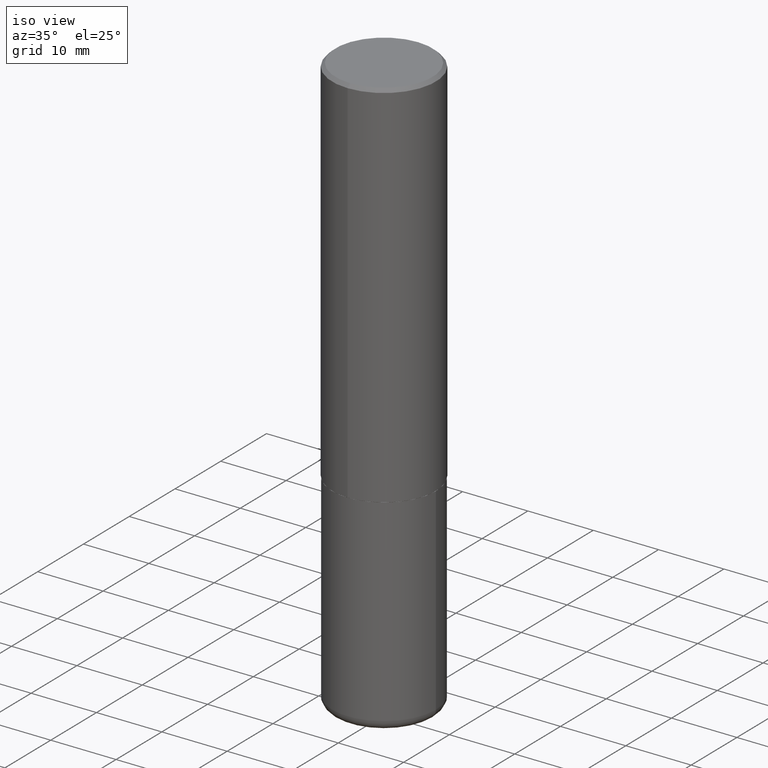
[diagram: clean part render]
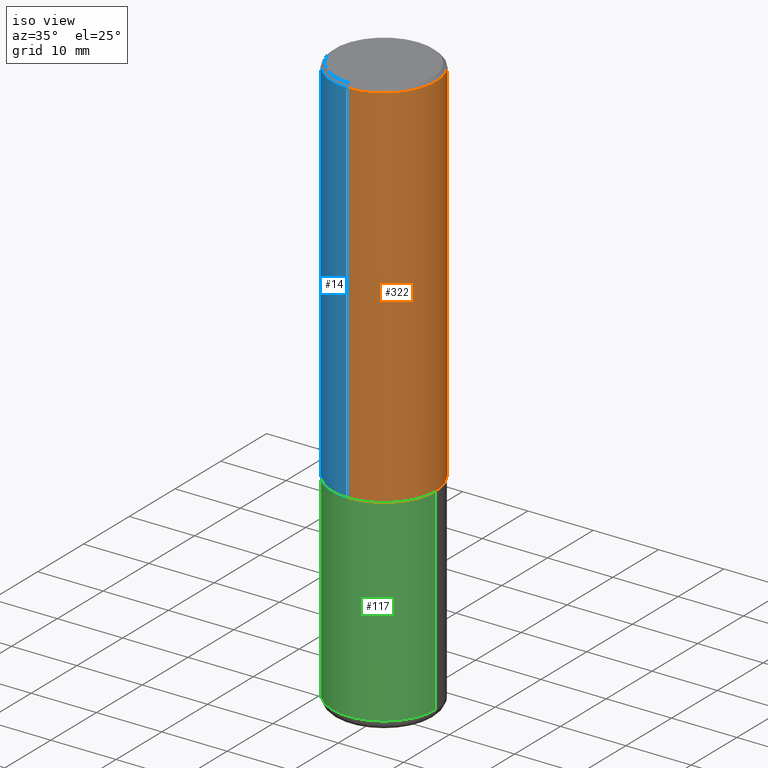
[diagram: same view with three faces highlighted in distinct colors, each labeled with its STEP entity id]
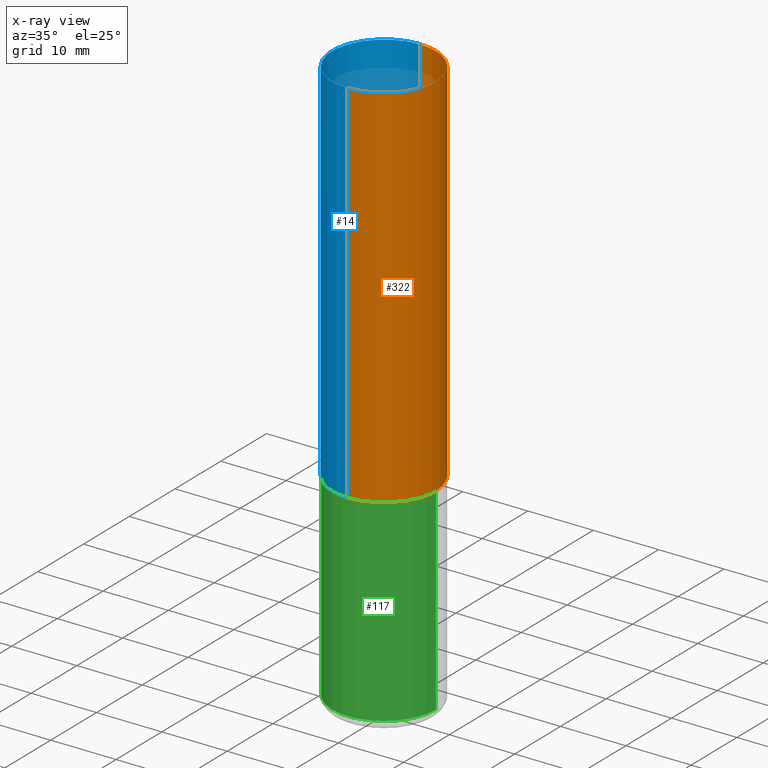
[diagram: x-ray of the same camera — body ghosted, the three highlighted faces saturated]
A machine part, iso view with three faces highlighted in distinct colors.
The next image is the same camera in x-ray (body ghosted, the three faces saturated) — at least one of them is partly hidden behind the body in this view.
Their STEP definitions:

[orange] entity #322 — the highlighted cylindrical surface (partial cylindrical patch) has radius 7.9375 mm, axis along (-0, 0, 1).
#9 = CYLINDRICAL_SURFACE ( 'NONE', #76, 0.3125000000000000555 ) ;
#13 = VECTOR ( 'NONE', #289, 39.37007874015748143 ) ;
#42 = CARTESIAN_POINT ( 'NONE',  ( 0.000000000000000000, 0.000000000000000000, 0.000000000000000000 ) ) ;
#49 = DIRECTION ( 'NONE',  ( -2.444155435168616212E-29, 3.493362160891238126E-15, 1.000000000000000000 ) ) ;
#55 = ORIENTED_EDGE ( 'NONE', *, *, #370, .T. ) ;
#58 = EDGE_CURVE ( 'NONE', #70, #309, #341, .T. ) ;
#64 = DIRECTION ( 'NONE',  ( -6.982962677686265922E-15, -1.000000000000000000, 3.496765431890253764E-15 ) ) ;
#70 = VERTEX_POINT ( 'NONE', #365 ) ;
#76 = AXIS2_PLACEMENT_3D ( 'NONE', #42, #397, #120 ) ;
#82 = ORIENTED_EDGE ( 'NONE', *, *, #205, .F. ) ;
#89 = DIRECTION ( 'NONE',  ( -6.982962677686265133E-15, -1.000000000000000000, 3.496765431890258103E-15 ) ) ;
#109 = VERTEX_POINT ( 'NONE', #317 ) ;
#116 = CIRCLE ( 'NONE', #355, 0.3124999999999998890 ) ;
#120 = DIRECTION ( 'NONE',  ( -6.982962677686266711E-15, -1.000000000000000000, 3.493362160891238520E-15 ) ) ;
#184 = LINE ( 'NONE', #340, #13 ) ;
#186 = VECTOR ( 'NONE', #49, 39.37007874015748143 ) ;
#200 = EDGE_LOOP ( 'NONE', ( #55, #211, #82, #392 ) ) ;
#205 = EDGE_CURVE ( 'NONE', #386, #309, #116, .T. ) ;
#211 = ORIENTED_EDGE ( 'NONE', *, *, #58, .T. ) ;
#217 = CARTESIAN_POINT ( 'NONE',  ( 2.182175836776957558E-15, 0.3124999999999998335, -0.02000000000000116268 ) ) ;
#219 = DIRECTION ( 'NONE',  ( -2.444155435168616212E-29, 3.493362160891238520E-15, 1.000000000000000000 ) ) ;
#241 = CARTESIAN_POINT ( 'NONE',  ( 2.220446049250313081E-15, 0.3125000000000000555, -1.091675675278512284E-15 ) ) ;
#261 = CIRCLE ( 'NONE', #374, 0.3125000000000002776 ) ;
#289 = DIRECTION ( 'NONE',  ( -2.444155435168616212E-29, 3.493362160891238126E-15, 1.000000000000000000 ) ) ;
#291 = CARTESIAN_POINT ( 'NONE',  ( 4.888310870337248995E-31, -6.986724321782500903E-17, -0.02000000000000006981 ) ) ;
#309 = VERTEX_POINT ( 'NONE', #217 ) ;
#317 = CARTESIAN_POINT ( 'NONE',  ( -2.182175836776905099E-15, -0.3125000000000081601, -2.248999999999998778 ) ) ;
#322 = ADVANCED_FACE ( 'NONE', ( #366 ), #9, .T. ) ;
#340 = CARTESIAN_POINT ( 'NONE',  ( -2.182175836776958741E-15, -0.3125000000000000555, 1.091675675278512284E-15 ) ) ;
#341 = LINE ( 'NONE', #241, #186 ) ;
#349 = EDGE_CURVE ( 'NONE', #109, #386, #184, .T. ) ;
#355 = AXIS2_PLACEMENT_3D ( 'NONE', #291, #376, #89 ) ;
#365 = CARTESIAN_POINT ( 'NONE',  ( 2.220446049250341480E-15, 0.3124999999999924505, -2.249000000000000998 ) ) ;
#366 = FACE_OUTER_BOUND ( 'NONE', #200, .T. ) ;
#370 = EDGE_CURVE ( 'NONE', #109, #70, #261, .T. ) ;
#372 = CARTESIAN_POINT ( 'NONE',  ( 5.496905573694216767E-29, -7.856571499844395127E-15, -2.248999999999999666 ) ) ;
#374 = AXIS2_PLACEMENT_3D ( 'NONE', #372, #219, #64 ) ;
#376 = DIRECTION ( 'NONE',  ( -2.444155435168616212E-29, 3.493362160891238520E-15, 1.000000000000000000 ) ) ;
#386 = VERTEX_POINT ( 'NONE', #417 ) ;
#392 = ORIENTED_EDGE ( 'NONE', *, *, #349, .F. ) ;
#397 = DIRECTION ( 'NONE',  ( -2.444155435168616212E-29, 3.493362160891238520E-15, 1.000000000000000000 ) ) ;
#417 = CARTESIAN_POINT ( 'NONE',  ( -2.143905624303602036E-15, -0.3124999999999999445, -0.01999999999999897693 ) ) ;

[blue] entity #14 — the highlighted cylindrical surface (partial cylindrical patch) has radius 7.9375 mm, axis along (-0, 0, 1).
#4 = ORIENTED_EDGE ( 'NONE', *, *, #58, .F. ) ;
#13 = VECTOR ( 'NONE', #289, 39.37007874015748143 ) ;
#14 = ADVANCED_FACE ( 'NONE', ( #72 ), #178, .T. ) ;
#46 = ORIENTED_EDGE ( 'NONE', *, *, #140, .F. ) ;
#49 = DIRECTION ( 'NONE',  ( -2.444155435168616212E-29, 3.493362160891238126E-15, 1.000000000000000000 ) ) ;
#58 = EDGE_CURVE ( 'NONE', #70, #309, #341, .T. ) ;
#70 = VERTEX_POINT ( 'NONE', #365 ) ;
#72 = FACE_OUTER_BOUND ( 'NONE', #393, .T. ) ;
#83 = DIRECTION ( 'NONE',  ( -6.982962677686265922E-15, -1.000000000000000000, 3.496765431890253764E-15 ) ) ;
#105 = ORIENTED_EDGE ( 'NONE', *, *, #349, .T. ) ;
#109 = VERTEX_POINT ( 'NONE', #317 ) ;
#121 = AXIS2_PLACEMENT_3D ( 'NONE', #135, #306, #390 ) ;
#135 = CARTESIAN_POINT ( 'NONE',  ( 0.000000000000000000, 0.000000000000000000, 0.000000000000000000 ) ) ;
#140 = EDGE_CURVE ( 'NONE', #309, #386, #342, .T. ) ;
#151 = CIRCLE ( 'NONE', #158, 0.3125000000000002776 ) ;
#158 = AXIS2_PLACEMENT_3D ( 'NONE', #369, #252, #83 ) ;
#178 = CYLINDRICAL_SURFACE ( 'NONE', #121, 0.3125000000000000555 ) ;
#184 = LINE ( 'NONE', #340, #13 ) ;
#186 = VECTOR ( 'NONE', #49, 39.37007874015748143 ) ;
#217 = CARTESIAN_POINT ( 'NONE',  ( 2.182175836776957558E-15, 0.3124999999999998335, -0.02000000000000116268 ) ) ;
#227 = DIRECTION ( 'NONE',  ( -2.444155435168616212E-29, 3.493362160891238520E-15, 1.000000000000000000 ) ) ;
#241 = CARTESIAN_POINT ( 'NONE',  ( 2.220446049250313081E-15, 0.3125000000000000555, -1.091675675278512284E-15 ) ) ;
#252 = DIRECTION ( 'NONE',  ( -2.444155435168616212E-29, 3.493362160891238520E-15, 1.000000000000000000 ) ) ;
#289 = DIRECTION ( 'NONE',  ( -2.444155435168616212E-29, 3.493362160891238126E-15, 1.000000000000000000 ) ) ;
#303 = DIRECTION ( 'NONE',  ( -6.982962677686265133E-15, -1.000000000000000000, 3.496765431890258103E-15 ) ) ;
#306 = DIRECTION ( 'NONE',  ( -2.444155435168616212E-29, 3.493362160891238520E-15, 1.000000000000000000 ) ) ;
#309 = VERTEX_POINT ( 'NONE', #217 ) ;
#317 = CARTESIAN_POINT ( 'NONE',  ( -2.182175836776905099E-15, -0.3125000000000081601, -2.248999999999998778 ) ) ;
#330 = EDGE_CURVE ( 'NONE', #70, #109, #151, .T. ) ;
#340 = CARTESIAN_POINT ( 'NONE',  ( -2.182175836776958741E-15, -0.3125000000000000555, 1.091675675278512284E-15 ) ) ;
#341 = LINE ( 'NONE', #241, #186 ) ;
#342 = CIRCLE ( 'NONE', #380, 0.3124999999999998890 ) ;
#349 = EDGE_CURVE ( 'NONE', #109, #386, #184, .T. ) ;
#362 = ORIENTED_EDGE ( 'NONE', *, *, #330, .T. ) ;
#365 = CARTESIAN_POINT ( 'NONE',  ( 2.220446049250341480E-15, 0.3124999999999924505, -2.249000000000000998 ) ) ;
#369 = CARTESIAN_POINT ( 'NONE',  ( 5.496905573694216767E-29, -7.856571499844395127E-15, -2.248999999999999666 ) ) ;
#380 = AXIS2_PLACEMENT_3D ( 'NONE', #414, #227, #303 ) ;
#386 = VERTEX_POINT ( 'NONE', #417 ) ;
#390 = DIRECTION ( 'NONE',  ( -6.982962677686266711E-15, -1.000000000000000000, 3.493362160891238520E-15 ) ) ;
#393 = EDGE_LOOP ( 'NONE', ( #4, #362, #105, #46 ) ) ;
#414 = CARTESIAN_POINT ( 'NONE',  ( 4.888310870337248995E-31, -6.986724321782500903E-17, -0.02000000000000006981 ) ) ;
#417 = CARTESIAN_POINT ( 'NONE',  ( -2.143905624303602036E-15, -0.3124999999999999445, -0.01999999999999897693 ) ) ;

[green] entity #117 — the highlighted cylindrical surface (partial cylindrical patch) has radius 7.9375 mm, axis along (-0, 0, 1).
#1 = ORIENTED_EDGE ( 'NONE', *, *, #189, .F. ) ;
#16 = CYLINDRICAL_SURFACE ( 'NONE', #153, 0.3125000000000000000 ) ;
#17 = DIRECTION ( 'NONE',  ( 1.000000000000000000, -6.982962677686266711E-15, 4.876176775795936353E-29 ) ) ;
#19 = CARTESIAN_POINT ( 'NONE',  ( 0.3125000000000000000, -1.003800884917403522E-14, -2.249999999999999556 ) ) ;
#24 = VERTEX_POINT ( 'NONE', #336 ) ;
#69 = CARTESIAN_POINT ( 'NONE',  ( 0.3125000000000000000, -2.182175836776958347E-15, 1.523805242436230075E-29 ) ) ;
#90 = CARTESIAN_POINT ( 'NONE',  ( 0.000000000000000000, 0.000000000000000000, 0.000000000000000000 ) ) ;
#117 = ADVANCED_FACE ( 'NONE', ( #215 ), #16, .T. ) ;
#119 = DIRECTION ( 'NONE',  ( -2.445468806185136597E-29, 3.491481338843145583E-15, 1.000000000000000000 ) ) ;
#131 = DIRECTION ( 'NONE',  ( 1.000000000000000000, -6.982962677686269077E-15, 0.000000000000000000 ) ) ;
#138 = VERTEX_POINT ( 'NONE', #161 ) ;
#146 = VERTEX_POINT ( 'NONE', #263 ) ;
#153 = AXIS2_PLACEMENT_3D ( 'NONE', #90, #335, #17 ) ;
#161 = CARTESIAN_POINT ( 'NONE',  ( -0.3125000000000000000, -9.790249756370107944E-15, -3.439999999999999947 ) ) ;
#164 = CARTESIAN_POINT ( 'NONE',  ( 5.502304813916556222E-29, -7.855833012397076871E-15, -2.249999999999999556 ) ) ;
#175 = VERTEX_POINT ( 'NONE', #19 ) ;
#189 = EDGE_CURVE ( 'NONE', #146, #175, #344, .T. ) ;
#199 = DIRECTION ( 'NONE',  ( 1.000000000000000000, -6.982962677686269077E-15, 0.000000000000000000 ) ) ;
#203 = DIRECTION ( 'NONE',  ( -2.445468806185136877E-29, 3.491481338843145188E-15, 1.000000000000000000 ) ) ;
#204 = EDGE_CURVE ( 'NONE', #138, #24, #381, .T. ) ;
#212 = VECTOR ( 'NONE', #203, 39.37007874015748143 ) ;
#215 = FACE_OUTER_BOUND ( 'NONE', #360, .T. ) ;
#228 = CARTESIAN_POINT ( 'NONE',  ( 8.412412693276869938E-29, -1.201069580562042103E-14, -3.439999999999999947 ) ) ;
#230 = CARTESIAN_POINT ( 'NONE',  ( -0.3125000000000000000, 2.220446049250313081E-15, -1.537167215704658232E-29 ) ) ;
#235 = ORIENTED_EDGE ( 'NONE', *, *, #301, .F. ) ;
#238 = ORIENTED_EDGE ( 'NONE', *, *, #204, .T. ) ;
#258 = EDGE_CURVE ( 'NONE', #24, #175, #329, .T. ) ;
#263 = CARTESIAN_POINT ( 'NONE',  ( -0.3125000000000000000, -7.712818359758435078E-15, -2.249999999999999556 ) ) ;
#299 = DIRECTION ( 'NONE',  ( -2.445468806185136597E-29, 3.491481338843145583E-15, 1.000000000000000000 ) ) ;
#301 = EDGE_CURVE ( 'NONE', #138, #146, #304, .T. ) ;
#304 = LINE ( 'NONE', #230, #406 ) ;
#314 = AXIS2_PLACEMENT_3D ( 'NONE', #164, #299, #131 ) ;
#325 = AXIS2_PLACEMENT_3D ( 'NONE', #228, #119, #199 ) ;
#326 = ORIENTED_EDGE ( 'NONE', *, *, #258, .T. ) ;
#329 = LINE ( 'NONE', #69, #212 ) ;
#335 = DIRECTION ( 'NONE',  ( -2.445468806185136597E-29, 3.491481338843145583E-15, 1.000000000000000000 ) ) ;
#336 = CARTESIAN_POINT ( 'NONE',  ( 0.3125000000000000000, -1.419287164239737937E-14, -3.439999999999999947 ) ) ;
#344 = CIRCLE ( 'NONE', #314, 0.3125000000000000000 ) ;
#360 = EDGE_LOOP ( 'NONE', ( #235, #238, #326, #1 ) ) ;
#381 = CIRCLE ( 'NONE', #325, 0.3125000000000000000 ) ;
#385 = DIRECTION ( 'NONE',  ( -2.445468806185136877E-29, 3.491481338843145188E-15, 1.000000000000000000 ) ) ;
#406 = VECTOR ( 'NONE', #385, 39.37007874015748143 ) ;